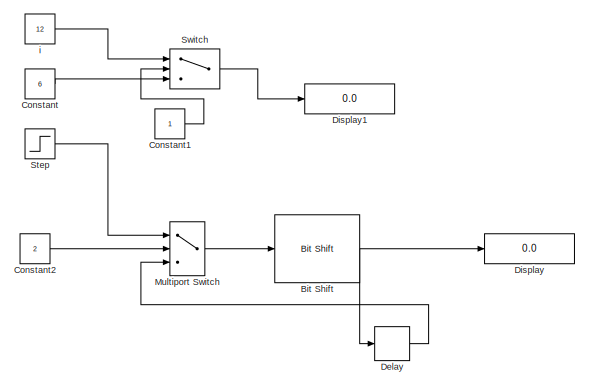
[diagram: root canvas - part 1/2, top left region]
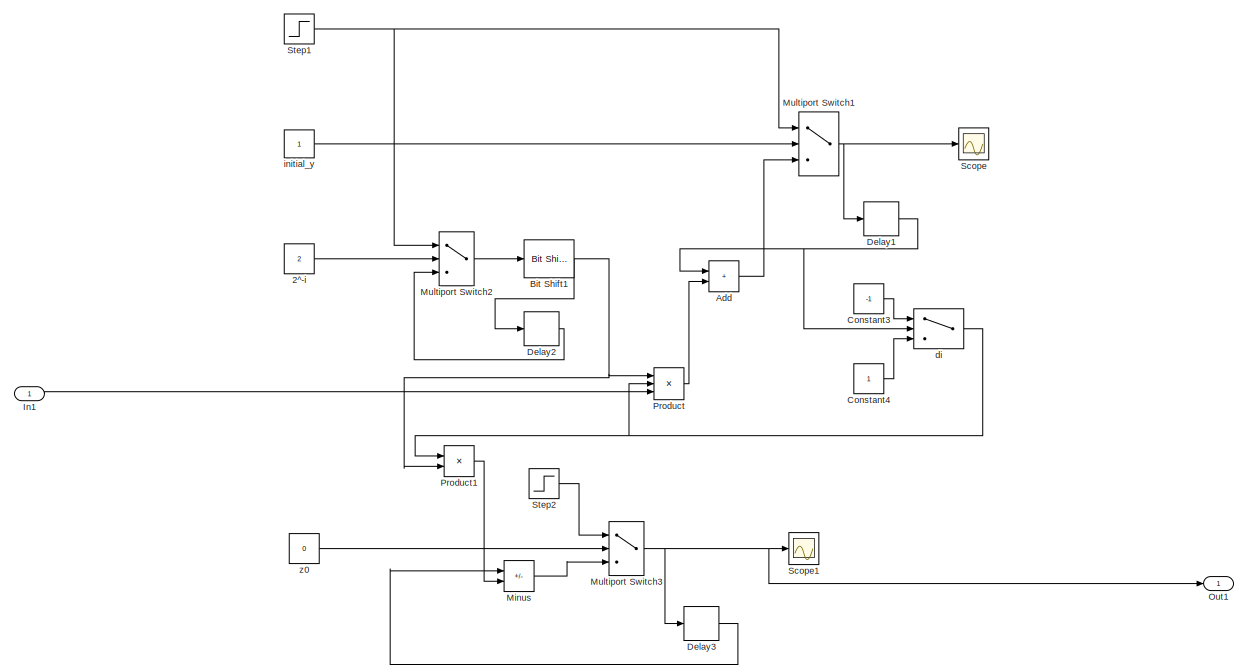
[diagram: root canvas - part 2/2, full width, bottom band]
MODEL slx_21eb486e72e3
KIND model
CONFIG AbsTol = auto
CONFIG EnableMultiTasking = off
CONFIG FixedStep = auto
CONFIG MaxStep = auto
CONFIG MinStep = auto
CONFIG RelTol = 1e-3
CONFIG SampleTimeConstraint = Unconstrained
CONFIG SolverName = VariableStepAuto
CONFIG StartTime = 0.0
CONFIG StopTime = 10.0
BLOCK [Constant] 2^-i
  Value = 2
BLOCK [Sum] Add
  IconShape = rectangular
  Ports = [2, 1]
BLOCK [Reference] Bit Shift  REF=hdlsllib/Logic and Bit
Operations/Bit Shift
  Ports = [1, 1]
  SourceBlock = hdlsllib/Logic and Bit\nOperations/Bit Shift
  SourceProductBaseCode = SL
  SourceType = Bit Shift
BLOCK [Reference] Bit Shift1  REF=hdlsllib/Logic and Bit
Operations/Bit Shift
  Ports = [1, 1]
  SourceBlock = hdlsllib/Logic and Bit\nOperations/Bit Shift
  SourceProductBaseCode = SL
  SourceType = Bit Shift
BLOCK [Constant] Constant
  Value = 6
BLOCK [Constant] Constant1
BLOCK [Constant] Constant2
  Value = 2
BLOCK [Constant] Constant3
  Value = -1
BLOCK [Constant] Constant4
BLOCK [Delay] Delay
  DelayLength = 1
  InputPortMap = u0
  Ports = [1, 1]
BLOCK [Delay] Delay1
  DelayLength = 1
  InputPortMap = u0
  Ports = [1, 1]
BLOCK [Delay] Delay2
  DelayLength = 1
  InputPortMap = u0
  Ports = [1, 1]
BLOCK [Delay] Delay3
  DelayLength = 1
  InputPortMap = u0
  Ports = [1, 1]
BLOCK [Display] Display
  Decimation = 1
  Ports = [1]
BLOCK [Display] Display1
  Decimation = 1
  Ports = [1]
BLOCK [Inport] In1
BLOCK [Sum] Minus
  IconShape = rectangular
  Inputs = +-
  Ports = [2, 1]
BLOCK [MultiPortSwitch] Multiport Switch
  DataPortOrder = Zero-based contiguous
  InputSameDT = off
  Inputs = 2
  Ports = [3, 1]
  SaturateOnIntegerOverflow = off
  zeroidx = on
BLOCK [MultiPortSwitch] Multiport Switch1
  DataPortOrder = Zero-based contiguous
  InputSameDT = off
  Inputs = 2
  Ports = [3, 1]
  SaturateOnIntegerOverflow = off
  zeroidx = on
BLOCK [MultiPortSwitch] Multiport Switch2
  DataPortOrder = Zero-based contiguous
  InputSameDT = off
  Inputs = 2
  Ports = [3, 1]
  SaturateOnIntegerOverflow = off
  zeroidx = on
BLOCK [MultiPortSwitch] Multiport Switch3
  DataPortOrder = Zero-based contiguous
  InputSameDT = off
  Inputs = 2
  Ports = [3, 1]
  SaturateOnIntegerOverflow = off
  zeroidx = on
BLOCK [Outport] Out1
BLOCK [Product] Product
  Inputs = 3
  Ports = [3, 1]
BLOCK [Product] Product1
  Ports = [2, 1]
BLOCK [Scope] Scope
  Floating = off
  NumInputPorts = 1
  Ports = [1]
  ScopeSpecificationString = Simulink.scopes.TimeScopeBlockCfg('CurrentConfiguration', extmgr.ConfigurationSet(extmgr.Configuration('Core','General UI',true),extmgr.Configuration('Core','Source UI',true),extmgr.Configuration('Sources','WiredSimulink',true),extmgr.Configuration('Visuals','Time Domain',true,'SerializedDisplays',{struct('MinYLimReal','-1.8125','MaxYLimReal','1.3125','YLabelReal','','MinYLimMag','0.00000','MaxYLi...<+1330ch>
BLOCK [Scope] Scope1
  Floating = off
  NumInputPorts = 1
  Ports = [1]
  ScopeSpecificationString = Simulink.scopes.TimeScopeBlockCfg('CurrentConfiguration', extmgr.ConfigurationSet(extmgr.Configuration('Core','General UI',true),extmgr.Configuration('Core','Source UI',true),extmgr.Configuration('Sources','WiredSimulink',true,'DataLoggingVariableName','ScopeData1'),extmgr.Configuration('Visuals','Time Domain',true,'SerializedDisplays',{struct('MinYLimReal','-0.0147','MaxYLimReal','0.5625','YLabel...<+1431ch>
BLOCK [Step] Step
  SampleTime = 0
BLOCK [Step] Step1
  SampleTime = 0
BLOCK [Step] Step2
  SampleTime = 0
BLOCK [Switch] Switch
  Criteria = u2 > Threshold
  InputSameDT = off
  SaturateOnIntegerOverflow = off
BLOCK [Switch] di
  Criteria = u2 > Threshold
  InputSameDT = off
  SaturateOnIntegerOverflow = off
BLOCK [Constant] i
  Value = 12
BLOCK [Constant] initial_y
BLOCK [Constant] z0
  Value = 0
LINE 2^-i:1 -> Multiport Switch2:2
LINE Add:1 -> Multiport Switch1:3
NET Bit Shift1:1 -> Delay2:1, Product1:2, Product:1
NET Bit Shift:1 -> Delay:1, Display:1
LINE Constant1:1 -> Switch:2
LINE Constant2:1 -> Multiport Switch:2
LINE Constant3:1 -> di:1
LINE Constant4:1 -> di:3
LINE Constant:1 -> Switch:3
NET Delay1:1 -> Add:1, di:2
LINE Delay2:1 -> Multiport Switch2:3
LINE Delay3:1 -> Minus:1
LINE Delay:1 -> Multiport Switch:3
LINE In1:1 -> Product:3
LINE Minus:1 -> Multiport Switch3:3
NET Multiport Switch1:1 -> Delay1:1, Scope:1
LINE Multiport Switch2:1 -> Bit Shift1:1
NET Multiport Switch3:1 -> Delay3:1, Out1:1, Scope1:1
LINE Multiport Switch:1 -> Bit Shift:1
LINE Product1:1 -> Minus:2
LINE Product:1 -> Add:2
NET Step1:1 -> Multiport Switch1:1, Multiport Switch2:1
LINE Step2:1 -> Multiport Switch3:1
LINE Step:1 -> Multiport Switch:1
LINE Switch:1 -> Display1:1
NET di:1 -> Product1:1, Product:2
LINE i:1 -> Switch:1
LINE initial_y:1 -> Multiport Switch1:2
LINE z0:1 -> Multiport Switch3:2
note: NET lines group one-source signal fan-out (src -> all destinations, sorted); 1:1 wires keep LINE
